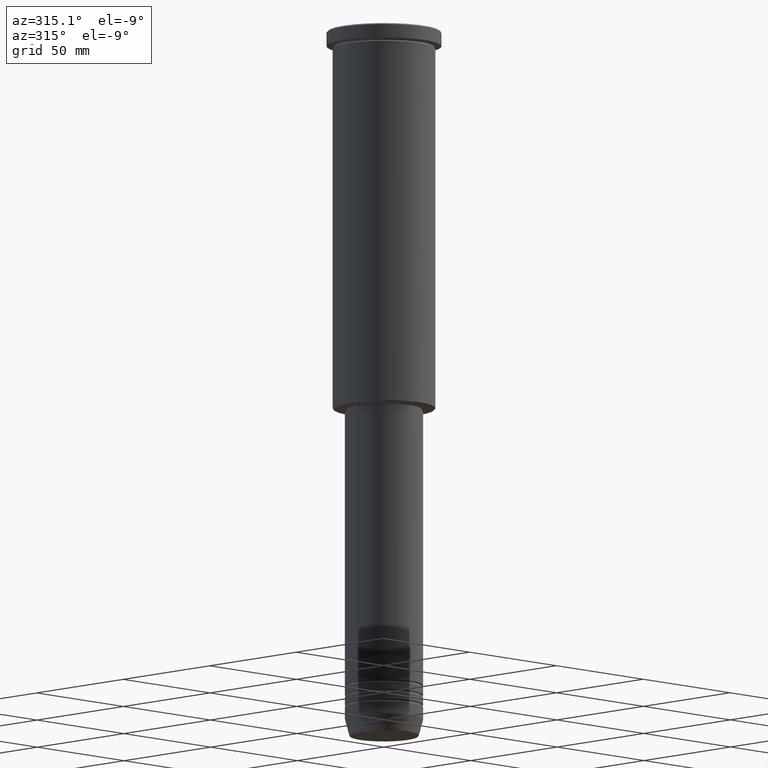
[diagram: clean part render]
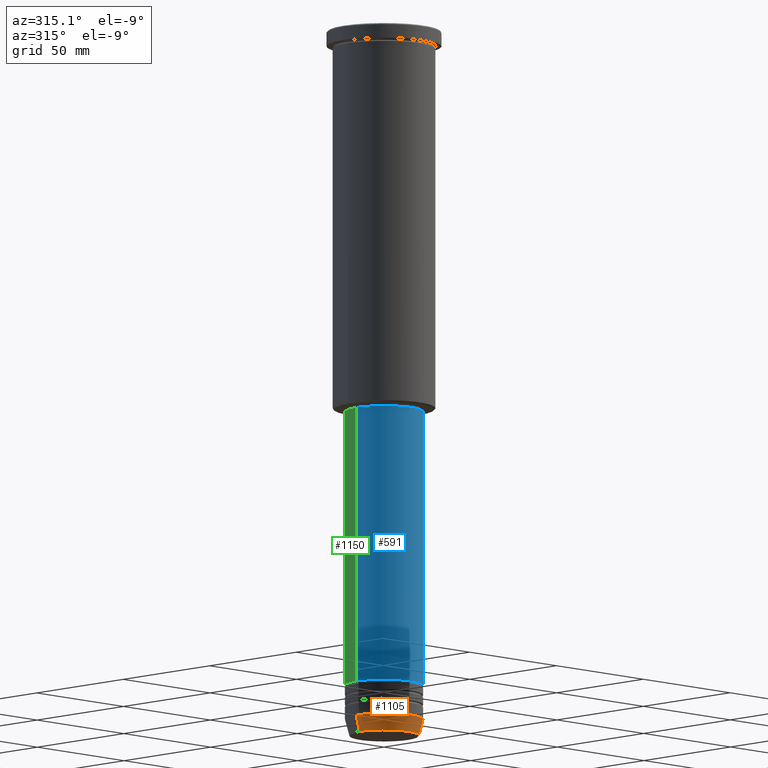
[diagram: same view with three faces highlighted in distinct colors, each labeled with its STEP entity id]
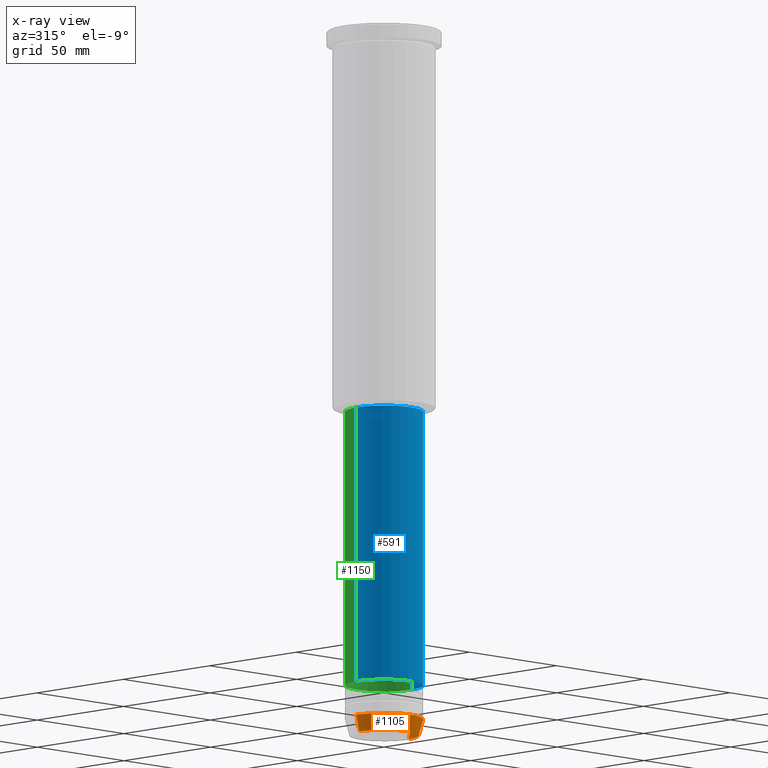
[diagram: x-ray of the same camera — body ghosted, the three highlighted faces saturated]
A machine part, auxiliary view with three faces highlighted in distinct colors.
The next image is the same camera in x-ray (body ghosted, the three faces saturated) — at least one of them is partly hidden behind the body in this view.
Their STEP definitions:

[orange] entity #1105 — the highlighted conical surface has half-angle 15 deg.
#26 = CIRCLE ( 'NONE', #461, 14.22365507213718772 ) ;
#53 = VERTEX_POINT ( 'NONE', #152 ) ;
#83 = CIRCLE ( 'NONE', #378, 16.00000000000000000 ) ;
#144 = DIRECTION ( 'NONE',  ( -0.2588190451025213501, 3.169619151431772337E-17, 0.9659258262890680902 ) ) ;
#152 = CARTESIAN_POINT ( 'NONE',  ( 14.22365507213718772, 0.000000000000000000, -290.6294095225512706 ) ) ;
#171 = DIRECTION ( 'NONE',  ( -0.000000000000000000, -0.000000000000000000, 1.000000000000000000 ) ) ;
#194 = EDGE_CURVE ( 'NONE', #655, #588, #523, .T. ) ;
#214 = EDGE_CURVE ( 'NONE', #655, #53, #26, .T. ) ;
#224 = DIRECTION ( 'NONE',  ( 1.000000000000000000, 0.000000000000000000, 0.000000000000000000 ) ) ;
#270 = DIRECTION ( 'NONE',  ( 0.2588190451025213501, 0.000000000000000000, 0.9659258262890680902 ) ) ;
#277 = VECTOR ( 'NONE', #270, 1000.000000000000000 ) ;
#351 = CARTESIAN_POINT ( 'NONE',  ( -16.00000000000000000, 1.959434878635765131E-15, -284.0000000000000568 ) ) ;
#378 = AXIS2_PLACEMENT_3D ( 'NONE', #950, #1044, #224 ) ;
#452 = DIRECTION ( 'NONE',  ( -0.000000000000000000, -0.000000000000000000, 1.000000000000000000 ) ) ;
#461 = AXIS2_PLACEMENT_3D ( 'NONE', #903, #452, #1081 ) ;
#469 = CARTESIAN_POINT ( 'NONE',  ( -16.00000000000000000, 1.959434878635765131E-15, -284.0000000000000568 ) ) ;
#523 = LINE ( 'NONE', #469, #864 ) ;
#588 = VERTEX_POINT ( 'NONE', #351 ) ;
#600 = LINE ( 'NONE', #737, #277 ) ;
#655 = VERTEX_POINT ( 'NONE', #859 ) ;
#737 = CARTESIAN_POINT ( 'NONE',  ( 16.00000000000000000, 0.000000000000000000, -284.0000000000000568 ) ) ;
#764 = EDGE_CURVE ( 'NONE', #588, #901, #83, .T. ) ;
#795 = CONICAL_SURFACE ( 'NONE', #944, 16.00000000000000000, 0.2617993877991500740 ) ;
#810 = CARTESIAN_POINT ( 'NONE',  ( 16.00000000000000000, 0.000000000000000000, -284.0000000000000568 ) ) ;
#859 = CARTESIAN_POINT ( 'NONE',  ( -14.22365507213718772, 1.850665122131323337E-15, -290.6294095225512706 ) ) ;
#864 = VECTOR ( 'NONE', #144, 1000.000000000000000 ) ;
#901 = VERTEX_POINT ( 'NONE', #810 ) ;
#902 = EDGE_LOOP ( 'NONE', ( #1053, #1087, #1018, #955 ) ) ;
#903 = CARTESIAN_POINT ( 'NONE',  ( 0.000000000000000000, 0.000000000000000000, -290.6294095225512706 ) ) ;
#912 = CARTESIAN_POINT ( 'NONE',  ( 0.000000000000000000, 0.000000000000000000, -284.0000000000000568 ) ) ;
#944 = AXIS2_PLACEMENT_3D ( 'NONE', #912, #171, #1089 ) ;
#950 = CARTESIAN_POINT ( 'NONE',  ( 0.000000000000000000, 0.000000000000000000, -284.0000000000000568 ) ) ;
#955 = ORIENTED_EDGE ( 'NONE', *, *, #764, .F. ) ;
#996 = FACE_OUTER_BOUND ( 'NONE', #902, .T. ) ;
#1018 = ORIENTED_EDGE ( 'NONE', *, *, #1124, .T. ) ;
#1044 = DIRECTION ( 'NONE',  ( -0.000000000000000000, -0.000000000000000000, 1.000000000000000000 ) ) ;
#1053 = ORIENTED_EDGE ( 'NONE', *, *, #194, .F. ) ;
#1081 = DIRECTION ( 'NONE',  ( 1.000000000000000000, 0.000000000000000000, 0.000000000000000000 ) ) ;
#1087 = ORIENTED_EDGE ( 'NONE', *, *, #214, .T. ) ;
#1089 = DIRECTION ( 'NONE',  ( 1.000000000000000000, 0.000000000000000000, 0.000000000000000000 ) ) ;
#1105 = ADVANCED_FACE ( 'NONE', ( #996 ), #795, .T. ) ;
#1124 = EDGE_CURVE ( 'NONE', #53, #901, #600, .T. ) ;

[blue] entity #591 — the highlighted cylindrical surface (partial cylindrical patch) has radius 16 mm, axis along (-0, -0, 1).
#65 = AXIS2_PLACEMENT_3D ( 'NONE', #615, #257, #509 ) ;
#155 = CARTESIAN_POINT ( 'NONE',  ( -16.00000000000000000, 1.959434878635765131E-15, 0.000000000000000000 ) ) ;
#184 = CARTESIAN_POINT ( 'NONE',  ( 16.00000000000000000, 0.000000000000000000, 0.000000000000000000 ) ) ;
#189 = CYLINDRICAL_SURFACE ( 'NONE', #774, 16.00000000000000000 ) ;
#215 = EDGE_LOOP ( 'NONE', ( #827, #614, #734, #853 ) ) ;
#256 = VERTEX_POINT ( 'NONE', #1034 ) ;
#257 = DIRECTION ( 'NONE',  ( -0.000000000000000000, -0.000000000000000000, 1.000000000000000000 ) ) ;
#296 = DIRECTION ( 'NONE',  ( 1.000000000000000000, 0.000000000000000000, 0.000000000000000000 ) ) ;
#298 = EDGE_CURVE ( 'NONE', #256, #999, #1082, .T. ) ;
#360 = AXIS2_PLACEMENT_3D ( 'NONE', #946, #1149, #296 ) ;
#395 = VECTOR ( 'NONE', #915, 1000.000000000000000 ) ;
#446 = CARTESIAN_POINT ( 'NONE',  ( 16.00000000000000000, 0.000000000000000000, -269.9999999999998863 ) ) ;
#467 = VERTEX_POINT ( 'NONE', #446 ) ;
#509 = DIRECTION ( 'NONE',  ( 1.000000000000000000, 0.000000000000000000, 0.000000000000000000 ) ) ;
#513 = CARTESIAN_POINT ( 'NONE',  ( 16.00000000000000355, 0.000000000000000000, -156.9999999999999432 ) ) ;
#526 = DIRECTION ( 'NONE',  ( -0.000000000000000000, -0.000000000000000000, 1.000000000000000000 ) ) ;
#548 = LINE ( 'NONE', #184, #395 ) ;
#554 = DIRECTION ( 'NONE',  ( -0.000000000000000000, -0.000000000000000000, 1.000000000000000000 ) ) ;
#591 = ADVANCED_FACE ( 'NONE', ( #1013 ), #189, .T. ) ;
#614 = ORIENTED_EDGE ( 'NONE', *, *, #868, .T. ) ;
#615 = CARTESIAN_POINT ( 'NONE',  ( 0.000000000000000000, 0.000000000000000000, -269.9999999999998863 ) ) ;
#724 = CARTESIAN_POINT ( 'NONE',  ( -16.00000000000000000, 1.959434878635765131E-15, -269.9999999999998863 ) ) ;
#734 = ORIENTED_EDGE ( 'NONE', *, *, #963, .T. ) ;
#774 = AXIS2_PLACEMENT_3D ( 'NONE', #984, #554, #919 ) ;
#827 = ORIENTED_EDGE ( 'NONE', *, *, #895, .F. ) ;
#851 = VECTOR ( 'NONE', #526, 1000.000000000000000 ) ;
#853 = ORIENTED_EDGE ( 'NONE', *, *, #298, .F. ) ;
#868 = EDGE_CURVE ( 'NONE', #1098, #467, #1121, .T. ) ;
#895 = EDGE_CURVE ( 'NONE', #1098, #256, #995, .T. ) ;
#915 = DIRECTION ( 'NONE',  ( -0.000000000000000000, -0.000000000000000000, 1.000000000000000000 ) ) ;
#919 = DIRECTION ( 'NONE',  ( 1.000000000000000000, 0.000000000000000000, 0.000000000000000000 ) ) ;
#946 = CARTESIAN_POINT ( 'NONE',  ( 0.000000000000000000, 0.000000000000000000, -156.9999999999999432 ) ) ;
#963 = EDGE_CURVE ( 'NONE', #467, #999, #548, .T. ) ;
#984 = CARTESIAN_POINT ( 'NONE',  ( 0.000000000000000000, 0.000000000000000000, 0.000000000000000000 ) ) ;
#995 = LINE ( 'NONE', #155, #851 ) ;
#999 = VERTEX_POINT ( 'NONE', #513 ) ;
#1013 = FACE_OUTER_BOUND ( 'NONE', #215, .T. ) ;
#1034 = CARTESIAN_POINT ( 'NONE',  ( -16.00000000000000355, 1.959434878635765526E-15, -156.9999999999999432 ) ) ;
#1082 = CIRCLE ( 'NONE', #360, 16.00000000000000355 ) ;
#1098 = VERTEX_POINT ( 'NONE', #724 ) ;
#1121 = CIRCLE ( 'NONE', #65, 16.00000000000000000 ) ;
#1149 = DIRECTION ( 'NONE',  ( -0.000000000000000000, -0.000000000000000000, 1.000000000000000000 ) ) ;

[green] entity #1150 — the highlighted cylindrical surface (partial cylindrical patch) has radius 16 mm, axis along (-0, -0, 1).
#21 = ORIENTED_EDGE ( 'NONE', *, *, #536, .F. ) ;
#141 = CARTESIAN_POINT ( 'NONE',  ( 0.000000000000000000, 0.000000000000000000, -156.9999999999999432 ) ) ;
#145 = CARTESIAN_POINT ( 'NONE',  ( 0.000000000000000000, 0.000000000000000000, 0.000000000000000000 ) ) ;
#155 = CARTESIAN_POINT ( 'NONE',  ( -16.00000000000000000, 1.959434878635765131E-15, 0.000000000000000000 ) ) ;
#184 = CARTESIAN_POINT ( 'NONE',  ( 16.00000000000000000, 0.000000000000000000, 0.000000000000000000 ) ) ;
#190 = DIRECTION ( 'NONE',  ( 1.000000000000000000, 0.000000000000000000, 0.000000000000000000 ) ) ;
#218 = AXIS2_PLACEMENT_3D ( 'NONE', #145, #872, #700 ) ;
#256 = VERTEX_POINT ( 'NONE', #1034 ) ;
#395 = VECTOR ( 'NONE', #915, 1000.000000000000000 ) ;
#403 = EDGE_CURVE ( 'NONE', #467, #1098, #905, .T. ) ;
#432 = CARTESIAN_POINT ( 'NONE',  ( 0.000000000000000000, 0.000000000000000000, -269.9999999999998863 ) ) ;
#446 = CARTESIAN_POINT ( 'NONE',  ( 16.00000000000000000, 0.000000000000000000, -269.9999999999998863 ) ) ;
#467 = VERTEX_POINT ( 'NONE', #446 ) ;
#513 = CARTESIAN_POINT ( 'NONE',  ( 16.00000000000000355, 0.000000000000000000, -156.9999999999999432 ) ) ;
#526 = DIRECTION ( 'NONE',  ( -0.000000000000000000, -0.000000000000000000, 1.000000000000000000 ) ) ;
#536 = EDGE_CURVE ( 'NONE', #999, #256, #985, .T. ) ;
#548 = LINE ( 'NONE', #184, #395 ) ;
#602 = AXIS2_PLACEMENT_3D ( 'NONE', #141, #858, #1056 ) ;
#640 = ORIENTED_EDGE ( 'NONE', *, *, #895, .T. ) ;
#700 = DIRECTION ( 'NONE',  ( 1.000000000000000000, 0.000000000000000000, 0.000000000000000000 ) ) ;
#724 = CARTESIAN_POINT ( 'NONE',  ( -16.00000000000000000, 1.959434878635765131E-15, -269.9999999999998863 ) ) ;
#851 = VECTOR ( 'NONE', #526, 1000.000000000000000 ) ;
#858 = DIRECTION ( 'NONE',  ( -0.000000000000000000, -0.000000000000000000, 1.000000000000000000 ) ) ;
#872 = DIRECTION ( 'NONE',  ( -0.000000000000000000, -0.000000000000000000, 1.000000000000000000 ) ) ;
#895 = EDGE_CURVE ( 'NONE', #1098, #256, #995, .T. ) ;
#905 = CIRCLE ( 'NONE', #1157, 16.00000000000000000 ) ;
#915 = DIRECTION ( 'NONE',  ( -0.000000000000000000, -0.000000000000000000, 1.000000000000000000 ) ) ;
#927 = EDGE_LOOP ( 'NONE', ( #968, #640, #21, #1070 ) ) ;
#962 = CYLINDRICAL_SURFACE ( 'NONE', #218, 16.00000000000000000 ) ;
#963 = EDGE_CURVE ( 'NONE', #467, #999, #548, .T. ) ;
#968 = ORIENTED_EDGE ( 'NONE', *, *, #403, .T. ) ;
#985 = CIRCLE ( 'NONE', #602, 16.00000000000000355 ) ;
#995 = LINE ( 'NONE', #155, #851 ) ;
#999 = VERTEX_POINT ( 'NONE', #513 ) ;
#1034 = CARTESIAN_POINT ( 'NONE',  ( -16.00000000000000355, 1.959434878635765526E-15, -156.9999999999999432 ) ) ;
#1056 = DIRECTION ( 'NONE',  ( 1.000000000000000000, 0.000000000000000000, 0.000000000000000000 ) ) ;
#1057 = FACE_OUTER_BOUND ( 'NONE', #927, .T. ) ;
#1070 = ORIENTED_EDGE ( 'NONE', *, *, #963, .F. ) ;
#1098 = VERTEX_POINT ( 'NONE', #724 ) ;
#1150 = ADVANCED_FACE ( 'NONE', ( #1057 ), #962, .T. ) ;
#1157 = AXIS2_PLACEMENT_3D ( 'NONE', #432, #1170, #190 ) ;
#1170 = DIRECTION ( 'NONE',  ( -0.000000000000000000, -0.000000000000000000, 1.000000000000000000 ) ) ;